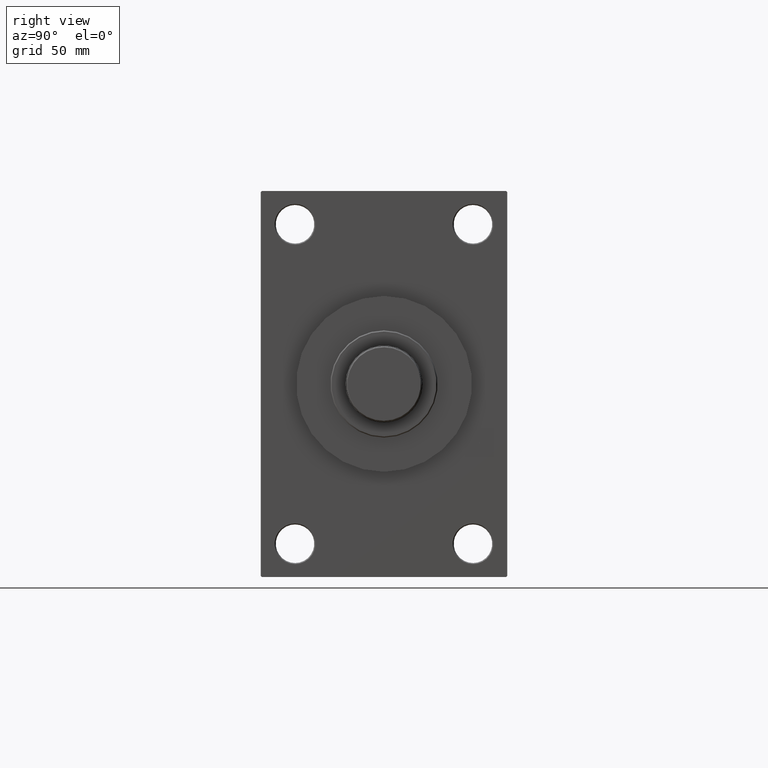
[diagram: clean part render]
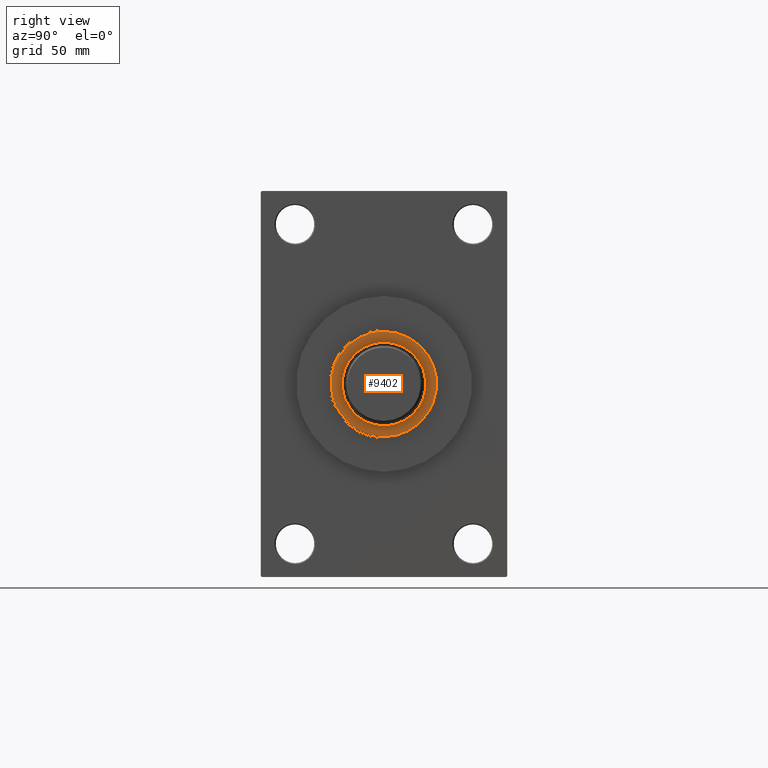
[diagram: same view with one face highlighted and labeled with its STEP entity id]
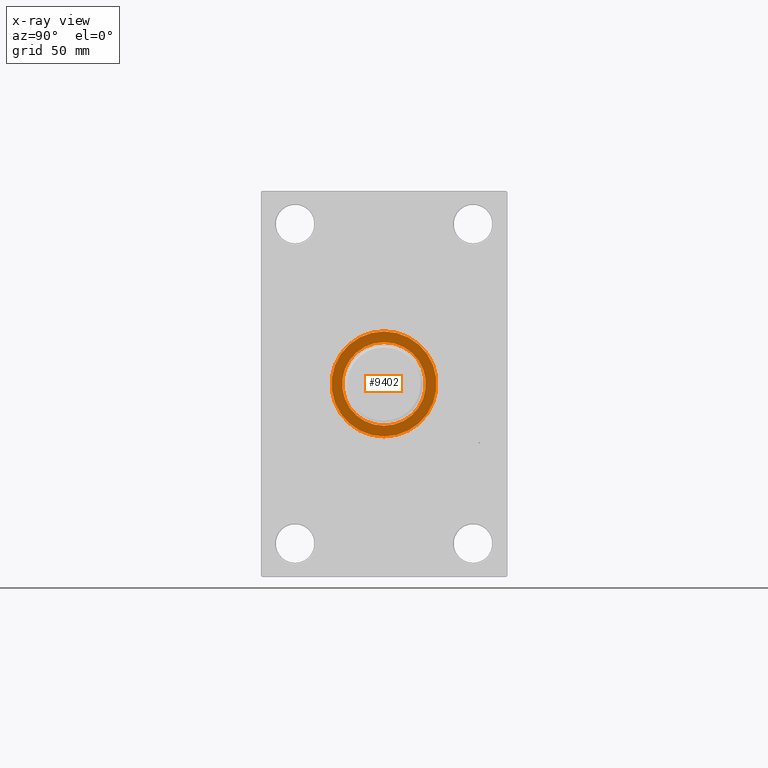
[diagram: x-ray of the same camera — body ghosted, the highlighted face saturated]
A machine part, right view. The second image highlights one B-rep face of the part: STEP entity #9402.
The next image is the same camera in x-ray: the body ghosted, the highlighted face saturated — about 0% of this face is hidden behind the body in this view.
In plain terms, the highlighted planar face has unit normal (1, 0, 0).
Its self-contained STEP definition (entity closure, byte-faithful):
#1697 = DIRECTION ( 'NONE',  ( 0.000000000000000000, 0.000000000000000000, 1.000000000000000000 ) ) ;
#4271 = CARTESIAN_POINT ( 'NONE',  ( 0.000000000000000000, 0.000000000000000000, 52.25999999999999801 ) ) ;
#4905 = PLANE ( 'NONE',  #13456 ) ;
#5576 = CIRCLE ( 'NONE', #23460, 19.50000000000000000 ) ;
#8145 = CARTESIAN_POINT ( 'NONE',  ( 0.000000000000000000, 0.000000000000000000, 52.25999999999999801 ) ) ;
#9269 = CARTESIAN_POINT ( 'NONE',  ( 0.000000000000000000, 0.000000000000000000, 52.25999999999999801 ) ) ;
#9402 = ADVANCED_FACE ( 'NONE', ( #16565, #34345 ), #4905, .T. ) ;
#10455 = CIRCLE ( 'NONE', #37669, 24.49999999999998224 ) ;
#10495 = EDGE_CURVE ( 'NONE', #38138, #34171, #46930, .T. ) ;
#10636 = CIRCLE ( 'NONE', #27733, 19.50000000000000000 ) ;
#11533 = DIRECTION ( 'NONE',  ( 0.000000000000000000, 0.000000000000000000, 1.000000000000000000 ) ) ;
#13456 = AXIS2_PLACEMENT_3D ( 'NONE', #16085, #30699, #42152 ) ;
#14075 = CARTESIAN_POINT ( 'NONE',  ( 19.50000000000000000, 0.000000000000000000, 52.25999999999999801 ) ) ;
#15874 = EDGE_CURVE ( 'NONE', #22745, #39762, #10636, .T. ) ;
#16085 = CARTESIAN_POINT ( 'NONE',  ( 0.000000000000000000, 0.000000000000000000, 52.25999999999999801 ) ) ;
#16293 = CARTESIAN_POINT ( 'NONE',  ( 0.000000000000000000, 0.000000000000000000, 52.25999999999999801 ) ) ;
#16565 = FACE_BOUND ( 'NONE', #18305, .T. ) ;
#17699 = EDGE_LOOP ( 'NONE', ( #26217, #33148 ) ) ;
#18305 = EDGE_LOOP ( 'NONE', ( #43257, #26997 ) ) ;
#18847 = DIRECTION ( 'NONE',  ( 1.000000000000000000, 0.000000000000000000, 0.000000000000000000 ) ) ;
#20275 = CARTESIAN_POINT ( 'NONE',  ( -24.49999999999998224, 0.000000000000000000, 52.25999999999999801 ) ) ;
#22745 = VERTEX_POINT ( 'NONE', #37132 ) ;
#23460 = AXIS2_PLACEMENT_3D ( 'NONE', #9269, #24098, #38966 ) ;
#24098 = DIRECTION ( 'NONE',  ( 0.000000000000000000, 0.000000000000000000, 1.000000000000000000 ) ) ;
#26217 = ORIENTED_EDGE ( 'NONE', *, *, #10495, .T. ) ;
#26375 = DIRECTION ( 'NONE',  ( 1.000000000000000000, 0.000000000000000000, 0.000000000000000000 ) ) ;
#26997 = ORIENTED_EDGE ( 'NONE', *, *, #15874, .F. ) ;
#27733 = AXIS2_PLACEMENT_3D ( 'NONE', #4271, #40799, #18847 ) ;
#29856 = AXIS2_PLACEMENT_3D ( 'NONE', #16293, #1697, #42599 ) ;
#30699 = DIRECTION ( 'NONE',  ( 0.000000000000000000, 0.000000000000000000, 1.000000000000000000 ) ) ;
#33148 = ORIENTED_EDGE ( 'NONE', *, *, #40436, .T. ) ;
#34171 = VERTEX_POINT ( 'NONE', #34808 ) ;
#34345 = FACE_OUTER_BOUND ( 'NONE', #17699, .T. ) ;
#34808 = CARTESIAN_POINT ( 'NONE',  ( 24.49999999999998224, 3.031000827889698072E-15, 52.25999999999999801 ) ) ;
#37132 = CARTESIAN_POINT ( 'NONE',  ( -19.50000000000000000, 2.388061258337338939E-15, 52.25999999999999801 ) ) ;
#37669 = AXIS2_PLACEMENT_3D ( 'NONE', #8145, #11533, #26375 ) ;
#38138 = VERTEX_POINT ( 'NONE', #20275 ) ;
#38966 = DIRECTION ( 'NONE',  ( 1.000000000000000000, 0.000000000000000000, 0.000000000000000000 ) ) ;
#39762 = VERTEX_POINT ( 'NONE', #14075 ) ;
#40436 = EDGE_CURVE ( 'NONE', #34171, #38138, #10455, .T. ) ;
#40799 = DIRECTION ( 'NONE',  ( 0.000000000000000000, 0.000000000000000000, 1.000000000000000000 ) ) ;
#42152 = DIRECTION ( 'NONE',  ( 1.000000000000000000, 0.000000000000000000, -0.000000000000000000 ) ) ;
#42599 = DIRECTION ( 'NONE',  ( 1.000000000000000000, 0.000000000000000000, 0.000000000000000000 ) ) ;
#43257 = ORIENTED_EDGE ( 'NONE', *, *, #47813, .F. ) ;
#46930 = CIRCLE ( 'NONE', #29856, 24.49999999999998224 ) ;
#47813 = EDGE_CURVE ( 'NONE', #39762, #22745, #5576, .T. ) ;